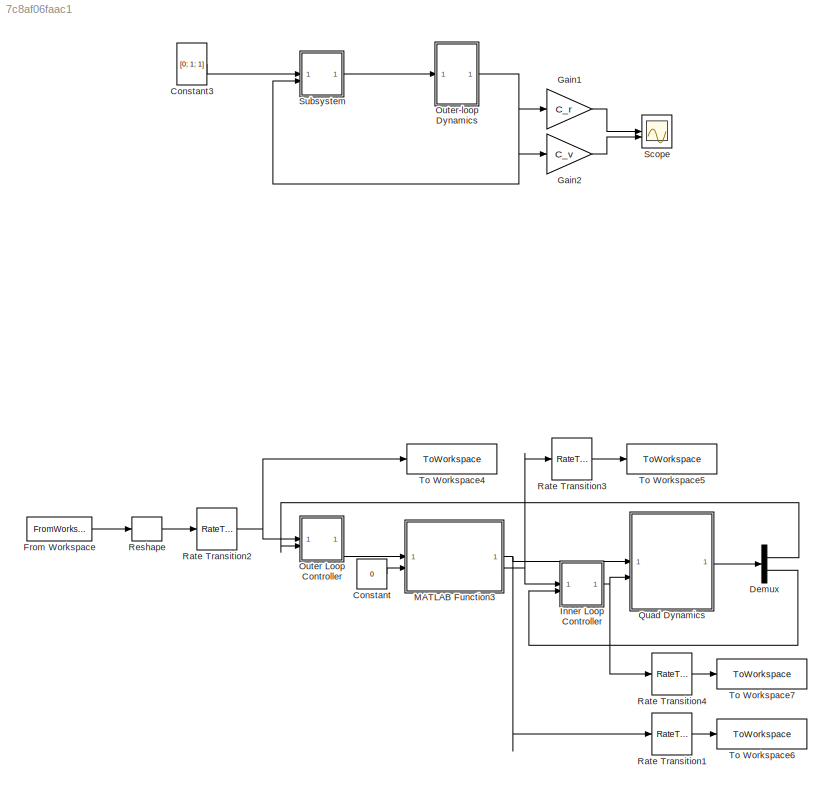
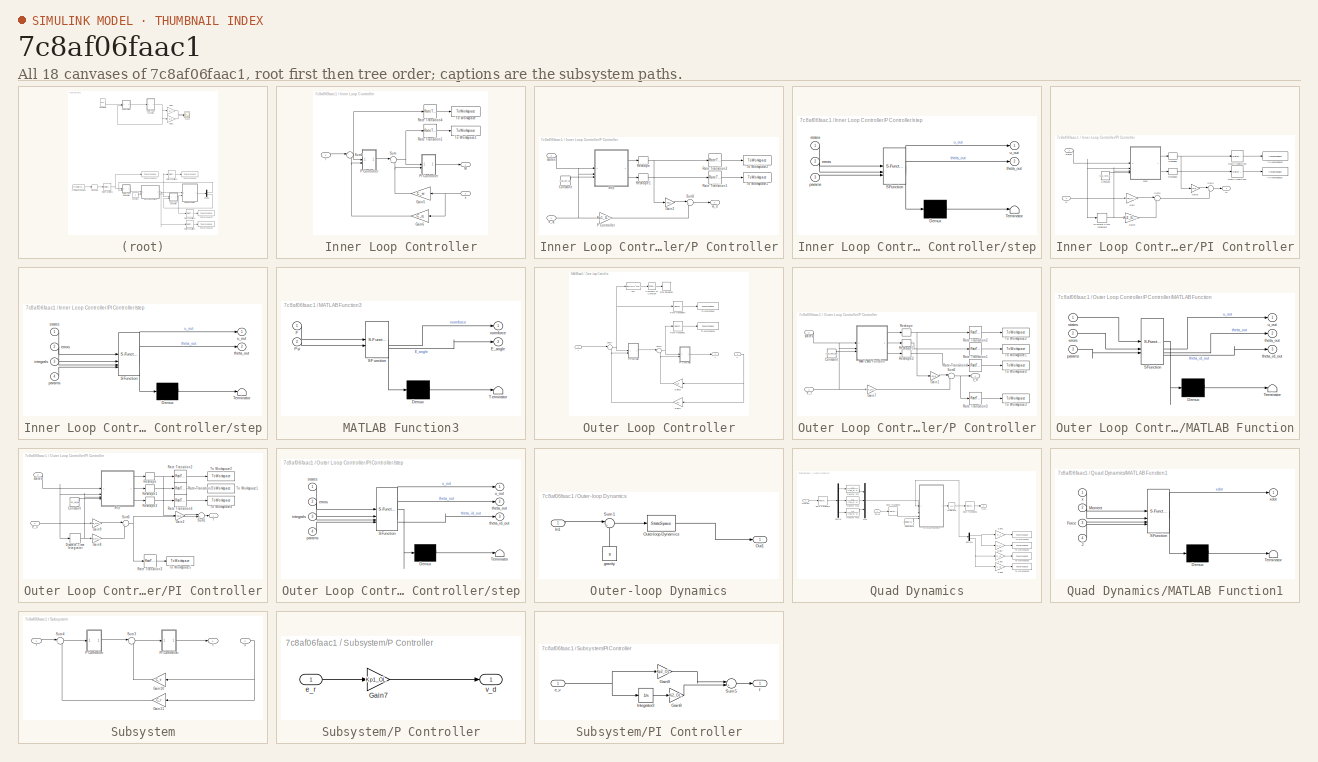
[diagram: thumbnail index - all 18 canvases of the model, root first then tree order]
MODEL slx_7c8af06faac1
KIND model
CONFIG AbsTol = auto
CONFIG EnableMultiTasking = off
CONFIG FixedStep = time_step/10
CONFIG MaxStep = auto
CONFIG MinStep = auto
CONFIG RelTol = 1e-3
CONFIG SampleTimeConstraint = Unconstrained
CONFIG SolverName = VariableStepAuto
CONFIG StartTime = 0.0
CONFIG StopTime = T
BLOCK [Constant] Constant
  SampleTime = time_step
  Value = 0
BLOCK [Constant] Constant3
  Commented = on
  Value = [0; 1; 1]
BLOCK [Demux] Demux
  Outputs = [6 6]
BLOCK [FromWorkspace] From Workspace
  VariableName = simin
BLOCK [Gain] Gain1
  Commented = on
  Gain = C_r
  Multiplication = Matrix(K*u)
BLOCK [Gain] Gain2
  Commented = on
  Gain = C_v
  Multiplication = Matrix(K*u)
BLOCK [SubSystem] Inner Loop Controller
BLOCK [Gain] Inner Loop Controller/Gain5
  Gain = C_w
  Multiplication = Matrix(K*u)
BLOCK [Gain] Inner Loop Controller/Gain6
  Gain = C_q
  Multiplication = Matrix(K*u)
BLOCK [Outport] Inner Loop Controller/M
BLOCK [SubSystem] Inner Loop Controller/P Controller
BLOCK [Constant] Inner Loop Controller/P Controller/Constant
  OutDataTypeStr = Bus: RCACParamsBus
  Value = rcac_att_ppi
BLOCK [Gain] Inner Loop Controller/P Controller/Gain2
  Gain = Ka_il
  Multiplication = Matrix(K*u)
BLOCK [Gain] Inner Loop Controller/P Controller/P Controller
  Gain = Kp1_IL*alpha_inner
  Multiplication = Matrix(K*u)
BLOCK [RateTransition] Inner Loop Controller/P Controller/Rate Transition1
  InitialCondition = zeros(1,3)
  OutPortSampleTime = 0
BLOCK [RateTransition] Inner Loop Controller/P Controller/Rate Transition2
  InitialCondition = [0 0 0]
  OutPortSampleTime = 0
BLOCK [Reshape] Inner Loop Controller/P Controller/Reshape
BLOCK [Reshape] Inner Loop Controller/P Controller/Reshape1
BLOCK [Sum] Inner Loop Controller/P Controller/Sum3
  Inputs = |++
BLOCK [ToWorkspace] Inner Loop Controller/P Controller/To Workspace1
  FixptAsFi = on
  MaxDataPoints = inf
  SampleTime = -1
  VariableName = theta_att
BLOCK [ToWorkspace] Inner Loop Controller/P Controller/To Workspace2
  FixptAsFi = on
  MaxDataPoints = inf
  SampleTime = -1
  VariableName = rcac_att_u
BLOCK [Inport] Inner Loop Controller/P Controller/e_q
BLOCK [Inport] Inner Loop Controller/P Controller/states
  Port = 2
BLOCK [SubSystem] Inner Loop Controller/P Controller/step
  ErrorFcn = Stateflow.Translate.translate
  LibrarySourceBlock = simulink/User-Defined\nFunctions/MATLAB Function
  PermitHierarchicalResolution = ExplicitOnly
  SFBlockType = MATLAB Function
  TreatAsAtomicUnit = on
BLOCK [Demux] Inner Loop Controller/P Controller/step/ Demux 
  Outputs = 1
BLOCK [S-Function] Inner Loop Controller/P Controller/step/ SFunction 
  EnableBusSupport = on
  FunctionName = sf_sfun
  PortCounts = [3 3]
  SFcnIsStateOwnerBlock = off
  SFunctionDeploymentMode = off
  Tag = Stateflow S-Function 1
BLOCK [Terminator] Inner Loop Controller/P Controller/step/ Terminator 
BLOCK [Inport] Inner Loop Controller/P Controller/step/errors
  Port = 2
BLOCK [Inport] Inner Loop Controller/P Controller/step/params
  Port = 3
BLOCK [Inport] Inner Loop Controller/P Controller/step/states
BLOCK [Outport] Inner Loop Controller/P Controller/step/theta_out
  Port = 2
BLOCK [Outport] Inner Loop Controller/P Controller/step/u_out
BLOCK [Outport] Inner Loop Controller/P Controller/w_d
BLOCK [SubSystem] Inner Loop Controller/PI Controller
BLOCK [Constant] Inner Loop Controller/PI Controller/Constant
  OutDataTypeStr = Bus: RCACParamsBus
  Value = rcac_rate_ppi
BLOCK [DiscreteIntegrator] Inner Loop Controller/PI Controller/Discrete-Time Integrator
  ICPrevOutput = DiscIntNeverNeededParam
  ICPrevScaledInput = DiscIntNeverNeededParam
  InitialCondition = [0 0 0]
  InitialConditionSetting = Auto
  SampleTime = time_step
BLOCK [Gain] Inner Loop Controller/PI Controller/Gain
  Gain = Kp2_IL*alpha_inner
  Multiplication = Matrix(K*u)
BLOCK [Gain] Inner Loop Controller/PI Controller/Gain2
  Gain = Ka_il
  Multiplication = Matrix(K*u)
BLOCK [Gain] Inner Loop Controller/PI Controller/Gain4
  Gain = Ki2_IL*alpha_inner
  Multiplication = Matrix(K*u)
BLOCK [Outport] Inner Loop Controller/PI Controller/M
BLOCK [RateTransition] Inner Loop Controller/PI Controller/Rate Transition1
  InitialCondition = zeros(1,6)
  OutPortSampleTime = 0
BLOCK [RateTransition] Inner Loop Controller/PI Controller/Rate Transition2
  InitialCondition = [0 0 0]
  OutPortSampleTime = 0
BLOCK [Reshape] Inner Loop Controller/PI Controller/Reshape
BLOCK [Reshape] Inner Loop Controller/PI Controller/Reshape1
BLOCK [Sum] Inner Loop Controller/PI Controller/Sum1
  Inputs = |++
BLOCK [Sum] Inner Loop Controller/PI Controller/Sum3
  Inputs = |++
BLOCK [ToWorkspace] Inner Loop Controller/PI Controller/To Workspace1
  FixptAsFi = on
  MaxDataPoints = inf
  SampleTime = -1
  VariableName = theta_rate
BLOCK [ToWorkspace] Inner Loop Controller/PI Controller/To Workspace2
  FixptAsFi = on
  MaxDataPoints = inf
  SampleTime = -1
  VariableName = rcac_rate_u
BLOCK [Inport] Inner Loop Controller/PI Controller/states
  Port = 2
BLOCK [SubSystem] Inner Loop Controller/PI Controller/step
  ErrorFcn = Stateflow.Translate.translate
  LibrarySourceBlock = simulink/User-Defined\nFunctions/MATLAB Function
  PermitHierarchicalResolution = ExplicitOnly
  SFBlockType = MATLAB Function
  TreatAsAtomicUnit = on
BLOCK [Demux] Inner Loop Controller/PI Controller/step/ Demux 
  Outputs = 1
BLOCK [S-Function] Inner Loop Controller/PI Controller/step/ SFunction 
  EnableBusSupport = on
  FunctionName = sf_sfun
  PortCounts = [4 3]
  SFcnIsStateOwnerBlock = off
  SFunctionDeploymentMode = off
  Tag = Stateflow S-Function 3
BLOCK [Terminator] Inner Loop Controller/PI Controller/step/ Terminator 
BLOCK [Inport] Inner Loop Controller/PI Controller/step/errors
  Port = 2
BLOCK [Inport] Inner Loop Controller/PI Controller/step/integrals
  Port = 3
BLOCK [Inport] Inner Loop Controller/PI Controller/step/params
  Port = 4
BLOCK [Inport] Inner Loop Controller/PI Controller/step/states
BLOCK [Outport] Inner Loop Controller/PI Controller/step/theta_out
  Port = 2
BLOCK [Outport] Inner Loop Controller/PI Controller/step/u_out
BLOCK [Inport] Inner Loop Controller/PI Controller/w
BLOCK [RateTransition] Inner Loop Controller/Rate Transition1
  InitialCondition = [0 0 0]
  OutPortSampleTime = 0
BLOCK [RateTransition] Inner Loop Controller/Rate Transition4
  InitialCondition = [0 0 0]
  OutPortSampleTime = 0
BLOCK [Sum] Inner Loop Controller/Sum
  Inputs = |+-
BLOCK [Sum] Inner Loop Controller/Sum2
  Inputs = |+-
BLOCK [ToWorkspace] Inner Loop Controller/To Workspace
  FixptAsFi = on
  MaxDataPoints = inf
  SampleTime = -1
  VariableName = err_eul
BLOCK [ToWorkspace] Inner Loop Controller/To Workspace1
  FixptAsFi = on
  MaxDataPoints = inf
  SampleTime = -1
  VariableName = err_rate
BLOCK [Inport] Inner Loop Controller/r
BLOCK [Inport] Inner Loop Controller/x
  NameLocation = top
  Port = 2
BLOCK [SubSystem] MATLAB Function3
  ErrorFcn = Stateflow.Translate.translate
  PermitHierarchicalResolution = ExplicitOnly
  SFBlockType = MATLAB Function
  TreatAsAtomicUnit = on
BLOCK [Demux] MATLAB Function3/ Demux 
  Outputs = 1
BLOCK [S-Function] MATLAB Function3/ SFunction 
  EnableBusSupport = on
  FunctionName = sf_sfun
  PortCounts = [2 3]
  SFcnIsStateOwnerBlock = off
  SFunctionDeploymentMode = off
  Tag = Stateflow S-Function 4
BLOCK [Terminator] MATLAB Function3/ Terminator 
BLOCK [Outport] MATLAB Function3/E_angle
  Port = 2
BLOCK [Inport] MATLAB Function3/F
BLOCK [Inport] MATLAB Function3/Psi
  Port = 2
BLOCK [Outport] MATLAB Function3/normforce
BLOCK [SubSystem] Outer Loop Controller
BLOCK [Reference] Outer Loop Controller/Compare To Constant  REF=simulink/Logic and Bit
Operations/Compare
To Constant
  SourceBlock = simulink/Logic and Bit\nOperations/Compare\nTo Constant
  SourceType = Compare To Constant
BLOCK [Fcn] Outer Loop Controller/Fcn
  Expr = sqrt(u(1)^2+u(2)^2+u(3)^2)
BLOCK [Gain] Outer Loop Controller/Gain10
  Gain = C_v
  Multiplication = Matrix(K*u)
BLOCK [Gain] Outer Loop Controller/Gain11
  Gain = C_r
  Multiplication = Matrix(K*u)
BLOCK [SubSystem] Outer Loop Controller/P Controller
BLOCK [Constant] Outer Loop Controller/P Controller/Constant
  OutDataTypeStr = Bus: RCACParamsBus
  Value = rcac_pos_ppi
BLOCK [Gain] Outer Loop Controller/P Controller/Gain1
  Gain = Ka_ol
  Multiplication = Matrix(K*u)
BLOCK [Gain] Outer Loop Controller/P Controller/Gain7
  Gain = Kp1_OL*alpha_outer
  Multiplication = Matrix(K*u)
BLOCK [SubSystem] Outer Loop Controller/P Controller/MATLAB Function
  ErrorFcn = Stateflow.Translate.translate
  LibrarySourceBlock = simulink/User-Defined\nFunctions/MATLAB Function
  PermitHierarchicalResolution = ExplicitOnly
  SFBlockType = MATLAB Function
  TreatAsAtomicUnit = on
BLOCK [Demux] Outer Loop Controller/P Controller/MATLAB Function/ Demux 
  Outputs = 1
BLOCK [S-Function] Outer Loop Controller/P Controller/MATLAB Function/ SFunction 
  EnableBusSupport = on
  FunctionName = sf_sfun
  PortCounts = [3 4]
  SFcnIsStateOwnerBlock = off
  SFunctionDeploymentMode = off
  Tag = Stateflow S-Function 5
BLOCK [Terminator] Outer Loop Controller/P Controller/MATLAB Function/ Terminator 
BLOCK [Inport] Outer Loop Controller/P Controller/MATLAB Function/errors
  Port = 2
BLOCK [Inport] Outer Loop Controller/P Controller/MATLAB Function/params
  Port = 3
BLOCK [Inport] Outer Loop Controller/P Controller/MATLAB Function/states
BLOCK [Outport] Outer Loop Controller/P Controller/MATLAB Function/theta_id_out
  Port = 3
BLOCK [Outport] Outer Loop Controller/P Controller/MATLAB Function/theta_out
  Port = 2
BLOCK [Outport] Outer Loop Controller/P Controller/MATLAB Function/u_out
BLOCK [RateTransition] Outer Loop Controller/P Controller/Rate Transition1
  InitialCondition = zeros(1,3)
  OutPortSampleTime = 0
BLOCK [RateTransition] Outer Loop Controller/P Controller/Rate Transition2
  InitialCondition = [0 0 0]
  OutPortSampleTime = 0
BLOCK [RateTransition] Outer Loop Controller/P Controller/Rate Transition3
  InitialCondition = zeros(1,3)
  OutPortSampleTime = 0
BLOCK [RateTransition] Outer Loop Controller/P Controller/Rate Transition4
  InitialCondition = zeros(1,9)
  OutPortSampleTime = 0
BLOCK [Reshape] Outer Loop Controller/P Controller/Reshape
BLOCK [Reshape] Outer Loop Controller/P Controller/Reshape1
BLOCK [Reshape] Outer Loop Controller/P Controller/Reshape2
BLOCK [Sum] Outer Loop Controller/P Controller/Sum3
  Inputs = |++
BLOCK [ToWorkspace] Outer Loop Controller/P Controller/To Workspace1
  FixptAsFi = on
  MaxDataPoints = inf
  SampleTime = -1
  VariableName = theta_pos
BLOCK [ToWorkspace] Outer Loop Controller/P Controller/To Workspace2
  FixptAsFi = on
  MaxDataPoints = inf
  SampleTime = -1
  VariableName = rcac_pos_u
BLOCK [ToWorkspace] Outer Loop Controller/P Controller/To Workspace3
  FixptAsFi = on
  MaxDataPoints = inf
  SampleTime = -1
  VariableName = pos_u
BLOCK [ToWorkspace] Outer Loop Controller/P Controller/To Workspace4
  FixptAsFi = on
  MaxDataPoints = inf
  SampleTime = -1
  VariableName = theta_id_pos
BLOCK [Inport] Outer Loop Controller/P Controller/e_r
BLOCK [Inport] Outer Loop Controller/P Controller/states
  Port = 2
BLOCK [Outport] Outer Loop Controller/P Controller/v_d
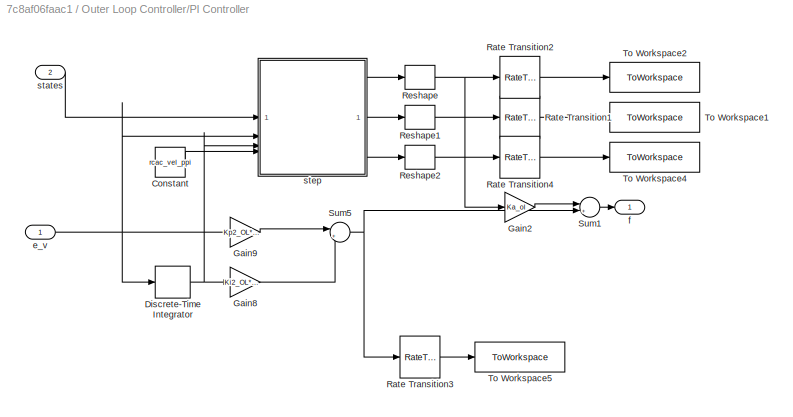
BLOCK [SubSystem] Outer Loop Controller/PI Controller
BLOCK [Constant] Outer Loop Controller/PI Controller/Constant
  OutDataTypeStr = Bus: RCACParamsBus
  Value = rcac_vel_ppi
BLOCK [DiscreteIntegrator] Outer Loop Controller/PI Controller/Discrete-Time Integrator
  ICPrevOutput = DiscIntNeverNeededParam
  ICPrevScaledInput = DiscIntNeverNeededParam
  InitialCondition = [0 0 0]
  InitialConditionSetting = Auto
  SampleTime = time_step
BLOCK [Gain] Outer Loop Controller/PI Controller/Gain2
  Gain = Ka_ol
  Multiplication = Matrix(K*u)
BLOCK [Gain] Outer Loop Controller/PI Controller/Gain8
  Gain = Ki2_OL*alpha_outer
  Multiplication = Matrix(K*u)
BLOCK [Gain] Outer Loop Controller/PI Controller/Gain9
  Gain = Kp2_OL*alpha_outer
  Multiplication = Matrix(K*u)
BLOCK [RateTransition] Outer Loop Controller/PI Controller/Rate Transition1
  InitialCondition = zeros(1,6)
  OutPortSampleTime = 0
BLOCK [RateTransition] Outer Loop Controller/PI Controller/Rate Transition2
  InitialCondition = [0 0 0]
  OutPortSampleTime = 0
BLOCK [RateTransition] Outer Loop Controller/PI Controller/Rate Transition3
  InitialCondition = [0 0 0]
  OutPortSampleTime = 0
BLOCK [RateTransition] Outer Loop Controller/PI Controller/Rate Transition4
  InitialCondition = zeros(1,9)
  OutPortSampleTime = 0
BLOCK [Reshape] Outer Loop Controller/PI Controller/Reshape
BLOCK [Reshape] Outer Loop Controller/PI Controller/Reshape1
BLOCK [Reshape] Outer Loop Controller/PI Controller/Reshape2
BLOCK [Sum] Outer Loop Controller/PI Controller/Sum1
  Inputs = |++
BLOCK [Sum] Outer Loop Controller/PI Controller/Sum5
  Inputs = |++
BLOCK [ToWorkspace] Outer Loop Controller/PI Controller/To Workspace1
  FixptAsFi = on
  MaxDataPoints = inf
  SampleTime = -1
  VariableName = theta_vel
BLOCK [ToWorkspace] Outer Loop Controller/PI Controller/To Workspace2
  FixptAsFi = on
  MaxDataPoints = inf
  SampleTime = -1
  VariableName = rcac_vel_u
BLOCK [ToWorkspace] Outer Loop Controller/PI Controller/To Workspace4
  FixptAsFi = on
  MaxDataPoints = inf
  SampleTime = -1
  VariableName = theta_id_vel
BLOCK [ToWorkspace] Outer Loop Controller/PI Controller/To Workspace5
  FixptAsFi = on
  MaxDataPoints = inf
  SampleTime = -1
  VariableName = vel_u
BLOCK [Inport] Outer Loop Controller/PI Controller/e_v
BLOCK [Outport] Outer Loop Controller/PI Controller/f
BLOCK [Inport] Outer Loop Controller/PI Controller/states
  Port = 2
BLOCK [SubSystem] Outer Loop Controller/PI Controller/step
  ErrorFcn = Stateflow.Translate.translate
  LibrarySourceBlock = simulink/User-Defined\nFunctions/MATLAB Function
  PermitHierarchicalResolution = ExplicitOnly
  SFBlockType = MATLAB Function
  TreatAsAtomicUnit = on
BLOCK [Demux] Outer Loop Controller/PI Controller/step/ Demux 
  Outputs = 1
BLOCK [S-Function] Outer Loop Controller/PI Controller/step/ SFunction 
  EnableBusSupport = on
  FunctionName = sf_sfun
  PortCounts = [4 4]
  SFcnIsStateOwnerBlock = off
  SFunctionDeploymentMode = off
  Tag = Stateflow S-Function 7
BLOCK [Terminator] Outer Loop Controller/PI Controller/step/ Terminator 
BLOCK [Inport] Outer Loop Controller/PI Controller/step/errors
  Port = 2
BLOCK [Inport] Outer Loop Controller/PI Controller/step/integrals
  Port = 3
BLOCK [Inport] Outer Loop Controller/PI Controller/step/params
  Port = 4
BLOCK [Inport] Outer Loop Controller/PI Controller/step/states
BLOCK [Outport] Outer Loop Controller/PI Controller/step/theta_id_out
  Port = 3
BLOCK [Outport] Outer Loop Controller/PI Controller/step/theta_out
  Port = 2
BLOCK [Outport] Outer Loop Controller/PI Controller/step/u_out
BLOCK [RateTransition] Outer Loop Controller/Rate Transition1
  InitialCondition = [0 0 0]
  OutPortSampleTime = 0
BLOCK [RateTransition] Outer Loop Controller/Rate Transition4
  InitialCondition = [0 0 0]
  OutPortSampleTime = 0
BLOCK [Stop] Outer Loop Controller/Stop Simulation
BLOCK [Sum] Outer Loop Controller/Sum3
  Inputs = |+-
BLOCK [Sum] Outer Loop Controller/Sum4
  Inputs = |+-
BLOCK [ToWorkspace] Outer Loop Controller/To Workspace
  FixptAsFi = on
  MaxDataPoints = inf
  SampleTime = -1
  VariableName = err_pos
BLOCK [ToWorkspace] Outer Loop Controller/To Workspace1
  FixptAsFi = on
  MaxDataPoints = inf
  SampleTime = -1
  VariableName = err_vel
BLOCK [Outport] Outer Loop Controller/f
BLOCK [Inport] Outer Loop Controller/r
BLOCK [Inport] Outer Loop Controller/x
  Port = 2
BLOCK [SubSystem] Outer-loop Dynamics
  Commented = on
BLOCK [Inport] Outer-loop Dynamics/In1
BLOCK [Outport] Outer-loop Dynamics/Out1
BLOCK [StateSpace] Outer-loop Dynamics/Outer-loop Dynamics
  A = A
  B = B
  C = C
  ContinuousStateAttributes = 'position'
  D = zeros(6,3)
  InitialCondition = 0
BLOCK [Sum] Outer-loop Dynamics/Sum1
  Inputs = |++
BLOCK [Constant] Outer-loop Dynamics/gravity
  NameLocation = right
  Value = g
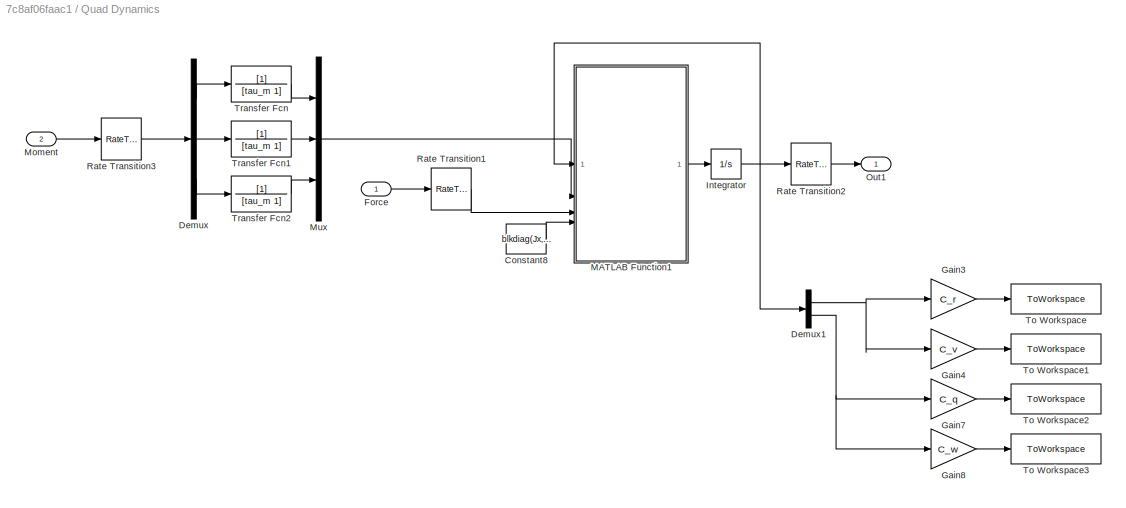
BLOCK [SubSystem] Quad Dynamics
BLOCK [Constant] Quad Dynamics/Constant8
  Value = blkdiag(Jx,Jy,Jz);
BLOCK [Demux] Quad Dynamics/Demux
  Outputs = 3
BLOCK [Demux] Quad Dynamics/Demux1
  Outputs = [6 6]
BLOCK [Inport] Quad Dynamics/Force
BLOCK [Gain] Quad Dynamics/Gain3
  Gain = C_r
  Multiplication = Matrix(K*u)
BLOCK [Gain] Quad Dynamics/Gain4
  Gain = C_v
  Multiplication = Matrix(K*u)
BLOCK [Gain] Quad Dynamics/Gain7
  Gain = C_q
  Multiplication = Matrix(K*u)
BLOCK [Gain] Quad Dynamics/Gain8
  Gain = C_w
  Multiplication = Matrix(K*u)
BLOCK [Integrator] Quad Dynamics/Integrator
BLOCK [SubSystem] Quad Dynamics/MATLAB Function1
  ErrorFcn = Stateflow.Translate.translate
  PermitHierarchicalResolution = ExplicitOnly
  SFBlockType = MATLAB Function
  TreatAsAtomicUnit = on
BLOCK [Demux] Quad Dynamics/MATLAB Function1/ Demux 
  Outputs = 1
BLOCK [S-Function] Quad Dynamics/MATLAB Function1/ SFunction 
  EnableBusSupport = on
  FunctionName = sf_sfun
  PortCounts = [4 2]
  SFcnIsStateOwnerBlock = off
  SFunctionDeploymentMode = off
  Tag = Stateflow S-Function 2
BLOCK [Terminator] Quad Dynamics/MATLAB Function1/ Terminator 
BLOCK [Inport] Quad Dynamics/MATLAB Function1/Force
  Port = 3
BLOCK [Inport] Quad Dynamics/MATLAB Function1/J
  Port = 4
BLOCK [Inport] Quad Dynamics/MATLAB Function1/Moment
  Port = 2
BLOCK [Inport] Quad Dynamics/MATLAB Function1/x
BLOCK [Outport] Quad Dynamics/MATLAB Function1/xdot
BLOCK [Inport] Quad Dynamics/Moment
  Port = 2
BLOCK [Mux] Quad Dynamics/Mux
  DisplayOption = bar
  Inputs = 3
BLOCK [Outport] Quad Dynamics/Out1
BLOCK [RateTransition] Quad Dynamics/Rate Transition1
  OutPortSampleTime = 0
BLOCK [RateTransition] Quad Dynamics/Rate Transition2
  InitialCondition = zeros(1,12)
  OutPortSampleTime = time_step
BLOCK [RateTransition] Quad Dynamics/Rate Transition3
  InitialCondition = [0 0 0]
  OutPortSampleTime = 0
BLOCK [ToWorkspace] Quad Dynamics/To Workspace
  FixptAsFi = on
  MaxDataPoints = inf
  SampleTime = -1
  VariableName = pos
BLOCK [ToWorkspace] Quad Dynamics/To Workspace1
  FixptAsFi = on
  MaxDataPoints = inf
  SampleTime = -1
  VariableName = vel
BLOCK [ToWorkspace] Quad Dynamics/To Workspace2
  FixptAsFi = on
  MaxDataPoints = inf
  SampleTime = -1
  VariableName = eul
BLOCK [ToWorkspace] Quad Dynamics/To Workspace3
  FixptAsFi = on
  MaxDataPoints = inf
  SampleTime = -1
  VariableName = rates
BLOCK [TransferFcn] Quad Dynamics/Transfer Fcn
  Denominator = [tau_m 1]
BLOCK [TransferFcn] Quad Dynamics/Transfer Fcn1
  Denominator = [tau_m 1]
BLOCK [TransferFcn] Quad Dynamics/Transfer Fcn2
  Denominator = [tau_m 1]
BLOCK [RateTransition] Rate Transition1
  OutPortSampleTime = 0
BLOCK [RateTransition] Rate Transition2
  InitialCondition = [squeeze(simin.Data(:,:,1))]'
  OutPortSampleTime = time_step
BLOCK [RateTransition] Rate Transition3
  InitialCondition = [0 0 0]
  OutPortSampleTime = 0
BLOCK [RateTransition] Rate Transition4
  InitialCondition = [0 0 0]
  OutPortSampleTime = 0
BLOCK [Reshape] Reshape
BLOCK [Scope] Scope
  Commented = on
  Floating = off
  NumInputPorts = 2
  ScopeSpecificationString = Simulink.scopes.TimeScopeBlockCfg('CurrentConfiguration', extmgr.ConfigurationSet(extmgr.Configuration('Core','General UI',true),extmgr.Configuration('Core','Source UI',true),extmgr.Configuration('Sources','WiredSimulink',true),extmgr.Configuration('Visuals','Time Domain',true,'SerializedDisplays',{struct('MinYLimReal','-0.12314','MaxYLimReal','1.10822','YLabelReal','','MinYLimMag','0.00000','MaxY...<+2041ch>
BLOCK [SubSystem] Subsystem
  Commented = on
BLOCK [Gain] Subsystem/Gain10
  Gain = C_v
  Multiplication = Matrix(K*u)
BLOCK [Gain] Subsystem/Gain11
  Gain = C_r
  Multiplication = Matrix(K*u)
BLOCK [SubSystem] Subsystem/P Controller
BLOCK [Gain] Subsystem/P Controller/Gain7
  Gain = Kp1_OL
  Multiplication = Matrix(K*u)
BLOCK [Inport] Subsystem/P Controller/e_r
BLOCK [Outport] Subsystem/P Controller/v_d
BLOCK [SubSystem] Subsystem/PI Controller
BLOCK [Gain] Subsystem/PI Controller/Gain8
  Gain = Ki2_OL
  Multiplication = Matrix(K*u)
BLOCK [Gain] Subsystem/PI Controller/Gain9
  Gain = Kp2_OL
  Multiplication = Matrix(K*u)
BLOCK [Integrator] Subsystem/PI Controller/Integrator3
BLOCK [Sum] Subsystem/PI Controller/Sum5
  Inputs = |++
BLOCK [Inport] Subsystem/PI Controller/e_v
  NameLocation = top
BLOCK [Outport] Subsystem/PI Controller/f
BLOCK [Sum] Subsystem/Sum3
  Inputs = |+-
BLOCK [Sum] Subsystem/Sum4
  Inputs = |+-
BLOCK [Outport] Subsystem/f
BLOCK [Inport] Subsystem/r
BLOCK [Inport] Subsystem/x
  Port = 2
BLOCK [ToWorkspace] To Workspace4
  FixptAsFi = on
  MaxDataPoints = inf
  SampleTime = -1
  VariableName = ref_pos
BLOCK [ToWorkspace] To Workspace5
  FixptAsFi = on
  MaxDataPoints = inf
  SampleTime = -1
  VariableName = ref_eul
BLOCK [ToWorkspace] To Workspace6
  FixptAsFi = on
  MaxDataPoints = inf
  SampleTime = -1
  VariableName = force
BLOCK [ToWorkspace] To Workspace7
  FixptAsFi = on
  MaxDataPoints = inf
  SampleTime = -1
  VariableName = moment
LINE Constant3:1 -> Subsystem:1
LINE Constant:1 -> MATLAB Function3:2
LINE Demux:1 -> Outer Loop Controller:2
LINE Demux:2 -> Inner Loop Controller:2
LINE From Workspace:1 -> Reshape:1
LINE Gain1:1 -> Scope:1
LINE Gain2:1 -> Scope:2
NET Inner Loop Controller/Gain5:1 -> Inner Loop Controller/PI Controller:2, Inner Loop Controller/Sum:2
NET Inner Loop Controller/Gain6:1 -> Inner Loop Controller/P Controller:2, Inner Loop Controller/Sum2:2
LINE Inner Loop Controller/P Controller/Constant:1 -> Inner Loop Controller/P Controller/step:3
LINE Inner Loop Controller/P Controller/Gain2:1 -> Inner Loop Controller/P Controller/Sum3:1
LINE Inner Loop Controller/P Controller/P Controller:1 -> Inner Loop Controller/P Controller/Sum3:2
LINE Inner Loop Controller/P Controller/Rate Transition1:1 -> Inner Loop Controller/P Controller/To Workspace1:1
LINE Inner Loop Controller/P Controller/Rate Transition2:1 -> Inner Loop Controller/P Controller/To Workspace2:1
LINE Inner Loop Controller/P Controller/Reshape1:1 -> Inner Loop Controller/P Controller/Rate Transition1:1
NET Inner Loop Controller/P Controller/Reshape:1 -> Inner Loop Controller/P Controller/Gain2:1, Inner Loop Controller/P Controller/Rate Transition2:1
LINE Inner Loop Controller/P Controller/Sum3:1 -> Inner Loop Controller/P Controller/w_d:1
NET Inner Loop Controller/P Controller/e_q:1 -> Inner Loop Controller/P Controller/P Controller:1, Inner Loop Controller/P Controller/step:2
LINE Inner Loop Controller/P Controller/states:1 -> Inner Loop Controller/P Controller/step:1
LINE Inner Loop Controller/P Controller/step:1 -> Inner Loop Controller/P Controller/Reshape:1
LINE Inner Loop Controller/P Controller/step:2 -> Inner Loop Controller/P Controller/Reshape1:1
LINE Inner Loop Controller/P Controller:1 -> Inner Loop Controller/Sum:1
LINE Inner Loop Controller/PI Controller/Constant:1 -> Inner Loop Controller/PI Controller/step:4
NET Inner Loop Controller/PI Controller/Discrete-Time Integrator:1 -> Inner Loop Controller/PI Controller/Gain4:1, Inner Loop Controller/PI Controller/step:3
LINE Inner Loop Controller/PI Controller/Gain2:1 -> Inner Loop Controller/PI Controller/Sum1:1
LINE Inner Loop Controller/PI Controller/Gain4:1 -> Inner Loop Controller/PI Controller/Sum3:2
LINE Inner Loop Controller/PI Controller/Gain:1 -> Inner Loop Controller/PI Controller/Sum3:1
LINE Inner Loop Controller/PI Controller/Rate Transition1:1 -> Inner Loop Controller/PI Controller/To Workspace1:1
LINE Inner Loop Controller/PI Controller/Rate Transition2:1 -> Inner Loop Controller/PI Controller/To Workspace2:1
LINE Inner Loop Controller/PI Controller/Reshape1:1 -> Inner Loop Controller/PI Controller/Rate Transition1:1
NET Inner Loop Controller/PI Controller/Reshape:1 -> Inner Loop Controller/PI Controller/Gain2:1, Inner Loop Controller/PI Controller/Rate Transition2:1
LINE Inner Loop Controller/PI Controller/Sum1:1 -> Inner Loop Controller/PI Controller/M:1
LINE Inner Loop Controller/PI Controller/Sum3:1 -> Inner Loop Controller/PI Controller/Sum1:2
LINE Inner Loop Controller/PI Controller/states:1 -> Inner Loop Controller/PI Controller/step:1
LINE Inner Loop Controller/PI Controller/step:1 -> Inner Loop Controller/PI Controller/Reshape:1
LINE Inner Loop Controller/PI Controller/step:2 -> Inner Loop Controller/PI Controller/Reshape1:1
NET Inner Loop Controller/PI Controller/w:1 -> Inner Loop Controller/PI Controller/Discrete-Time Integrator:1, Inner Loop Controller/PI Controller/Gain:1, Inner Loop Controller/PI Controller/step:2
LINE Inner Loop Controller/PI Controller:1 -> Inner Loop Controller/M:1
LINE Inner Loop Controller/Rate Transition1:1 -> Inner Loop Controller/To Workspace1:1
LINE Inner Loop Controller/Rate Transition4:1 -> Inner Loop Controller/To Workspace:1
NET Inner Loop Controller/Sum2:1 -> Inner Loop Controller/P Controller:1, Inner Loop Controller/Rate Transition4:1
NET Inner Loop Controller/Sum:1 -> Inner Loop Controller/PI Controller:1, Inner Loop Controller/Rate Transition1:1
LINE Inner Loop Controller/r:1 -> Inner Loop Controller/Sum2:1
NET Inner Loop Controller/x:1 -> Inner Loop Controller/Gain5:1, Inner Loop Controller/Gain6:1
NET Inner Loop Controller:1 -> Quad Dynamics:2, Rate Transition4:1
NET MATLAB Function3:1 -> Quad Dynamics:1, Rate Transition1:1
NET MATLAB Function3:2 -> Inner Loop Controller:1, Rate Transition3:1
LINE Outer Loop Controller/Compare To Constant:1 -> Outer Loop Controller/Stop Simulation:1
LINE Outer Loop Controller/Fcn:1 -> Outer Loop Controller/Compare To Constant:1
NET Outer Loop Controller/Gain10:1 -> Outer Loop Controller/PI Controller:2, Outer Loop Controller/Sum3:2
NET Outer Loop Controller/Gain11:1 -> Outer Loop Controller/P Controller:2, Outer Loop Controller/Sum4:2
LINE Outer Loop Controller/P Controller/Constant:1 -> Outer Loop Controller/P Controller/MATLAB Function:3
LINE Outer Loop Controller/P Controller/Gain1:1 -> Outer Loop Controller/P Controller/Sum3:1
LINE Outer Loop Controller/P Controller/Gain7:1 -> Outer Loop Controller/P Controller/Sum3:2
LINE Outer Loop Controller/P Controller/MATLAB Function:1 -> Outer Loop Controller/P Controller/Reshape:1
LINE Outer Loop Controller/P Controller/MATLAB Function:2 -> Outer Loop Controller/P Controller/Reshape1:1
LINE Outer Loop Controller/P Controller/MATLAB Function:3 -> Outer Loop Controller/P Controller/Reshape2:1
LINE Outer Loop Controller/P Controller/Rate Transition1:1 -> Outer Loop Controller/P Controller/To Workspace1:1
LINE Outer Loop Controller/P Controller/Rate Transition2:1 -> Outer Loop Controller/P Controller/To Workspace2:1
LINE Outer Loop Controller/P Controller/Rate Transition3:1 -> Outer Loop Controller/P Controller/To Workspace3:1
LINE Outer Loop Controller/P Controller/Rate Transition4:1 -> Outer Loop Controller/P Controller/To Workspace4:1
LINE Outer Loop Controller/P Controller/Reshape1:1 -> Outer Loop Controller/P Controller/Rate Transition1:1
LINE Outer Loop Controller/P Controller/Reshape2:1 -> Outer Loop Controller/P Controller/Rate Transition4:1
NET Outer Loop Controller/P Controller/Reshape:1 -> Outer Loop Controller/P Controller/Gain1:1, Outer Loop Controller/P Controller/Rate Transition2:1
NET Outer Loop Controller/P Controller/Sum3:1 -> Outer Loop Controller/P Controller/Rate Transition3:1, Outer Loop Controller/P Controller/v_d:1
NET Outer Loop Controller/P Controller/e_r:1 -> Outer Loop Controller/P Controller/Gain7:1, Outer Loop Controller/P Controller/MATLAB Function:2
LINE Outer Loop Controller/P Controller/states:1 -> Outer Loop Controller/P Controller/MATLAB Function:1
LINE Outer Loop Controller/P Controller:1 -> Outer Loop Controller/Sum3:1
LINE Outer Loop Controller/PI Controller/Constant:1 -> Outer Loop Controller/PI Controller/step:4
NET Outer Loop Controller/PI Controller/Discrete-Time Integrator:1 -> Outer Loop Controller/PI Controller/Gain8:1, Outer Loop Controller/PI Controller/step:3
LINE Outer Loop Controller/PI Controller/Gain2:1 -> Outer Loop Controller/PI Controller/Sum1:1
LINE Outer Loop Controller/PI Controller/Gain8:1 -> Outer Loop Controller/PI Controller/Sum5:2
LINE Outer Loop Controller/PI Controller/Gain9:1 -> Outer Loop Controller/PI Controller/Sum5:1
LINE Outer Loop Controller/PI Controller/Rate Transition1:1 -> Outer Loop Controller/PI Controller/To Workspace1:1
LINE Outer Loop Controller/PI Controller/Rate Transition2:1 -> Outer Loop Controller/PI Controller/To Workspace2:1
LINE Outer Loop Controller/PI Controller/Rate Transition3:1 -> Outer Loop Controller/PI Controller/To Workspace5:1
LINE Outer Loop Controller/PI Controller/Rate Transition4:1 -> Outer Loop Controller/PI Controller/To Workspace4:1
LINE Outer Loop Controller/PI Controller/Reshape1:1 -> Outer Loop Controller/PI Controller/Rate Transition1:1
LINE Outer Loop Controller/PI Controller/Reshape2:1 -> Outer Loop Controller/PI Controller/Rate Transition4:1
NET Outer Loop Controller/PI Controller/Reshape:1 -> Outer Loop Controller/PI Controller/Gain2:1, Outer Loop Controller/PI Controller/Rate Transition2:1
LINE Outer Loop Controller/PI Controller/Sum1:1 -> Outer Loop Controller/PI Controller/f:1
NET Outer Loop Controller/PI Controller/Sum5:1 -> Outer Loop Controller/PI Controller/Rate Transition3:1, Outer Loop Controller/PI Controller/Sum1:2
NET Outer Loop Controller/PI Controller/e_v:1 -> Outer Loop Controller/PI Controller/Discrete-Time Integrator:1, Outer Loop Controller/PI Controller/Gain9:1, Outer Loop Controller/PI Controller/step:2
LINE Outer Loop Controller/PI Controller/states:1 -> Outer Loop Controller/PI Controller/step:1
LINE Outer Loop Controller/PI Controller/step:1 -> Outer Loop Controller/PI Controller/Reshape:1
LINE Outer Loop Controller/PI Controller/step:2 -> Outer Loop Controller/PI Controller/Reshape1:1
LINE Outer Loop Controller/PI Controller/step:3 -> Outer Loop Controller/PI Controller/Reshape2:1
LINE Outer Loop Controller/PI Controller:1 -> Outer Loop Controller/f:1
LINE Outer Loop Controller/Rate Transition1:1 -> Outer Loop Controller/To Workspace1:1
LINE Outer Loop Controller/Rate Transition4:1 -> Outer Loop Controller/To Workspace:1
NET Outer Loop Controller/Sum3:1 -> Outer Loop Controller/PI Controller:1, Outer Loop Controller/Rate Transition1:1
NET Outer Loop Controller/Sum4:1 -> Outer Loop Controller/Fcn:1, Outer Loop Controller/P Controller:1, Outer Loop Controller/Rate Transition4:1
LINE Outer Loop Controller/r:1 -> Outer Loop Controller/Sum4:1
NET Outer Loop Controller/x:1 -> Outer Loop Controller/Gain10:1, Outer Loop Controller/Gain11:1
LINE Outer Loop Controller:1 -> MATLAB Function3:1
LINE Outer-loop Dynamics/In1:1 -> Outer-loop Dynamics/Sum1:1
LINE Outer-loop Dynamics/Outer-loop Dynamics:1 -> Outer-loop Dynamics/Out1:1
LINE Outer-loop Dynamics/Sum1:1 -> Outer-loop Dynamics/Outer-loop Dynamics:1
LINE Outer-loop Dynamics/gravity:1 -> Outer-loop Dynamics/Sum1:2
NET Outer-loop Dynamics:1 -> Gain1:1, Gain2:1, Subsystem:2
LINE Quad Dynamics/Constant8:1 -> Quad Dynamics/MATLAB Function1:4
NET Quad Dynamics/Demux1:1 -> Quad Dynamics/Gain3:1, Quad Dynamics/Gain4:1
NET Quad Dynamics/Demux1:2 -> Quad Dynamics/Gain7:1, Quad Dynamics/Gain8:1
LINE Quad Dynamics/Demux:1 -> Quad Dynamics/Transfer Fcn:1
LINE Quad Dynamics/Demux:2 -> Quad Dynamics/Transfer Fcn1:1
LINE Quad Dynamics/Demux:3 -> Quad Dynamics/Transfer Fcn2:1
LINE Quad Dynamics/Force:1 -> Quad Dynamics/Rate Transition1:1
LINE Quad Dynamics/Gain3:1 -> Quad Dynamics/To Workspace:1
LINE Quad Dynamics/Gain4:1 -> Quad Dynamics/To Workspace1:1
LINE Quad Dynamics/Gain7:1 -> Quad Dynamics/To Workspace2:1
LINE Quad Dynamics/Gain8:1 -> Quad Dynamics/To Workspace3:1
NET Quad Dynamics/Integrator:1 -> Quad Dynamics/Demux1:1, Quad Dynamics/MATLAB Function1:1, Quad Dynamics/Rate Transition2:1
LINE Quad Dynamics/MATLAB Function1:1 -> Quad Dynamics/Integrator:1
LINE Quad Dynamics/Moment:1 -> Quad Dynamics/Rate Transition3:1
LINE Quad Dynamics/Mux:1 -> Quad Dynamics/MATLAB Function1:2
LINE Quad Dynamics/Rate Transition1:1 -> Quad Dynamics/MATLAB Function1:3
LINE Quad Dynamics/Rate Transition2:1 -> Quad Dynamics/Out1:1
LINE Quad Dynamics/Rate Transition3:1 -> Quad Dynamics/Demux:1
LINE Quad Dynamics/Transfer Fcn1:1 -> Quad Dynamics/Mux:2
LINE Quad Dynamics/Transfer Fcn2:1 -> Quad Dynamics/Mux:3
LINE Quad Dynamics/Transfer Fcn:1 -> Quad Dynamics/Mux:1
LINE Quad Dynamics:1 -> Demux:1
LINE Rate Transition1:1 -> To Workspace6:1
NET Rate Transition2:1 -> Outer Loop Controller:1, To Workspace4:1
LINE Rate Transition3:1 -> To Workspace5:1
LINE Rate Transition4:1 -> To Workspace7:1
LINE Reshape:1 -> Rate Transition2:1
LINE Subsystem/Gain10:1 -> Subsystem/Sum3:2
LINE Subsystem/Gain11:1 -> Subsystem/Sum4:2
LINE Subsystem/P Controller/Gain7:1 -> Subsystem/P Controller/v_d:1
LINE Subsystem/P Controller/e_r:1 -> Subsystem/P Controller/Gain7:1
LINE Subsystem/P Controller:1 -> Subsystem/Sum3:1
LINE Subsystem/PI Controller/Gain8:1 -> Subsystem/PI Controller/Sum5:2
LINE Subsystem/PI Controller/Gain9:1 -> Subsystem/PI Controller/Sum5:1
LINE Subsystem/PI Controller/Integrator3:1 -> Subsystem/PI Controller/Gain8:1
LINE Subsystem/PI Controller/Sum5:1 -> Subsystem/PI Controller/f:1
NET Subsystem/PI Controller/e_v:1 -> Subsystem/PI Controller/Gain9:1, Subsystem/PI Controller/Integrator3:1
LINE Subsystem/PI Controller:1 -> Subsystem/f:1
LINE Subsystem/Sum3:1 -> Subsystem/PI Controller:1
LINE Subsystem/Sum4:1 -> Subsystem/P Controller:1
LINE Subsystem/r:1 -> Subsystem/Sum4:1
NET Subsystem/x:1 -> Subsystem/Gain10:1, Subsystem/Gain11:1
LINE Subsystem:1 -> Outer-loop Dynamics:1
note: NET lines group one-source signal fan-out (src -> all destinations, sorted); 1:1 wires keep LINE
CHART Inner Loop Controller/P Controller/step states=1 transitions=1
  STATE_LABEL 'eML_blk_kernel()'
  STATE_LABEL 'SCRIPT:\nfunction [u_out, theta_out] = ddrcac_step(states,errors,params)\n%% Constants\nRz_xy = 1.0;\nRu_xy = params.Ru_xy;\nP0_xy = params.P0_xy;\n\nRz_z = 1.0;\nRu_z = params.Ru_z;\nP0_z = params.P0_z;\n\nNf = params.Nf_xy;\n\nl_theta = params.PID;\n\nP0_id_val = params.P0_id;\nN_id = params.N_id;\neta_id = params.eta;\ntau_1_id = params.tau1;\ntau_2_id = params.tau2;\n\nltheta_id = N_id+N_id+1;\n\nP0_id = P0_id_val*e...<+1762ch>'
CHART Quad Dynamics/MATLAB Function1 states=1 transitions=1
  STATE_LABEL 'eML_blk_kernel()'
  STATE_LABEL 'SCRIPT:\nfunction xdot  = rotation_dynam(x, Moment, Force, J)%xdot 6x1, u moment\n\nxdot=zeros(12,1);\nv = x(4:6,1);\nomega_QE = x(10:12,1);\n\nm=0.8;\nmoment= Moment;\nforce=Force;\ng=[0;0;10];\nphi=x(7);\ntheta=x(8);\npsi=x(9);\n\n[O3psi, O2theta, O1phi] = orientation_matrices(phi, theta, psi);\nxdot(1:3,1) = v;\nxdot(4:6,1) = g + force/m*transpose(O3psi) * transpose(O2theta) * transpose(O1phi)*[0;0;1];\n\nxdot(7:...<+591ch>'
CHART Inner Loop Controller/PI Controller/step states=1 transitions=1
  STATE_LABEL 'eML_blk_kernel()'
  STATE_LABEL 'SCRIPT:\nfunction [u_out, theta_out] = ddrcac_step(states,errors,integrals,params)\n%% Constants\nRz_xy = 1.0;\nRu_xy = params.Ru_xy;\nP0_xy = params.P0_xy;\n\nRz_z = 1.0;\nRu_z = params.Ru_z;\nP0_z = params.P0_z;\nNf = params.Nf_xy;\n\nl_theta = params.PID;\n\nP0_id_val = params.P0_id;\nN_id = params.N_id;\neta_id = params.eta;\ntau_1_id = params.tau1;\ntau_2_id = params.tau2;\n\nltheta_id = N_id+N_id+1;\n\nP0_id = P0...<+1788ch>'
CHART MATLAB Function3 states=1 transitions=1
  STATE_LABEL 'eML_blk_kernel()'
  STATE_LABEL 'SCRIPT:\nfunction [normforce, E_angle] = fcn(F, Psi)\n\nE_angle=zeros(3,1);\nnormforce=0;\npara1=0;\npara2=0;\nfx=F(1);\nfy=F(2);\nfz=F(3);\n\nmagni=-sqrt(fx^2+fy^2+fz^2);\nif magni==0\n    psi=Psi;\n    theta=0;\n    phi=0;\n    E_angle=[phi;theta;psi];\n    normforce=0;\n\nelse\npsi=Psi;\nnormforce=magni;\n\nf1=fx/magni;\nf2=fy/magni;\nf3=fz/magni;\n\n%O3*O2*O1\n% phi=asin(f2);\n% theta=acos(f3/cos(phi));\n\n%Tranpose O3*O2*O...<+341ch>'
CHART Outer Loop Controller/P Controller/MATLAB Function states=1 transitions=1
  STATE_LABEL 'eML_blk_kernel()'
  STATE_LABEL 'SCRIPT:\nfunction [u_out, theta_out, theta_id_out] = rcac_step(states,errors,params)\n%% Constants\nRz_xy = 1.0;\nRu_xy = params.Ru_xy;\nP0_xy = params.P0_xy;\n\nRz_z = 1.0;\nRu_z = params.Ru_z;\nP0_z = params.P0_z;\n\nNf = params.Nf_xy;\n\nl_theta = params.PID;\n\nP0_id_val = params.P0_id;\nN_id = params.N_id;\neta_id = params.eta;\ntau_1_id = params.tau1;\ntau_2_id = params.tau2;\n\nltheta_id = N_id+N_id+1;\n\nP0_id =...<+1839ch>'
CHART Outer Loop Controller/PI Controller/step states=1 transitions=1
  STATE_LABEL 'eML_blk_kernel()'
  STATE_LABEL 'SCRIPT:\nfunction [u_out, theta_out, theta_id_out] = ddrcac_step(states,errors,integrals,params)\n%% Constants\nRz_xy = 1.0;\nRu_xy = params.Ru_xy;\nP0_xy = params.P0_xy;\n\nRz_z = 1.0;\nRu_z = params.Ru_z;\nP0_z = params.P0_z;\n\nNf = params.Nf_xy;\n\nl_theta = params.PID;\n\nP0_id_val = params.P0_id;\nN_id = params.N_id;\neta_id = params.eta;\ntau_1_id = params.tau1;\ntau_2_id = params.tau2;\n\nltheta_id = N_id+N_id...<+1871ch>'
CHART  states=0 transitions=0
CHART  states=0 transitions=0
CHART  states=0 transitions=0
CHART  states=0 transitions=0
CHART  states=0 transitions=0
CHART  states=0 transitions=0
